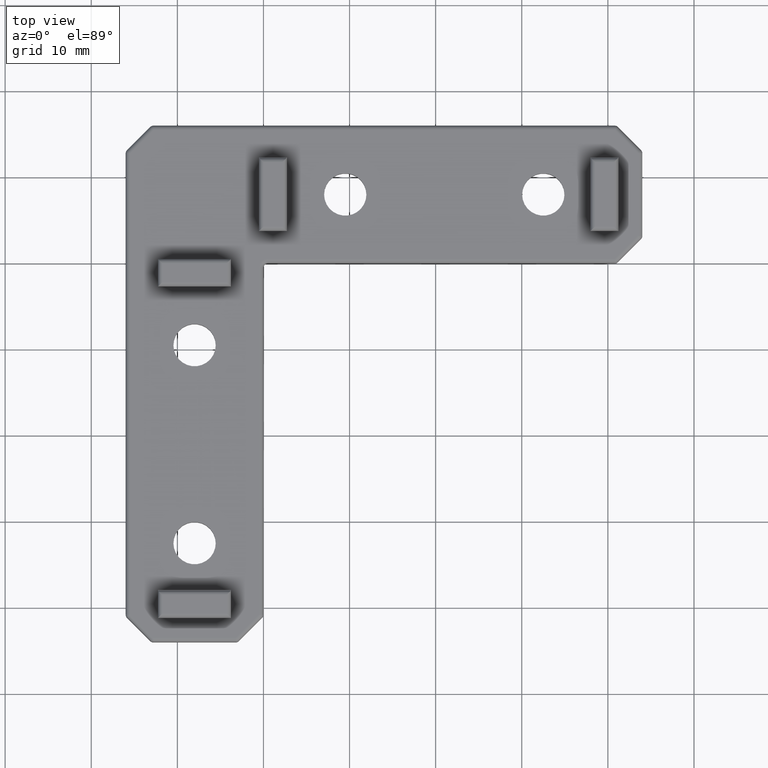
[diagram: clean part render]
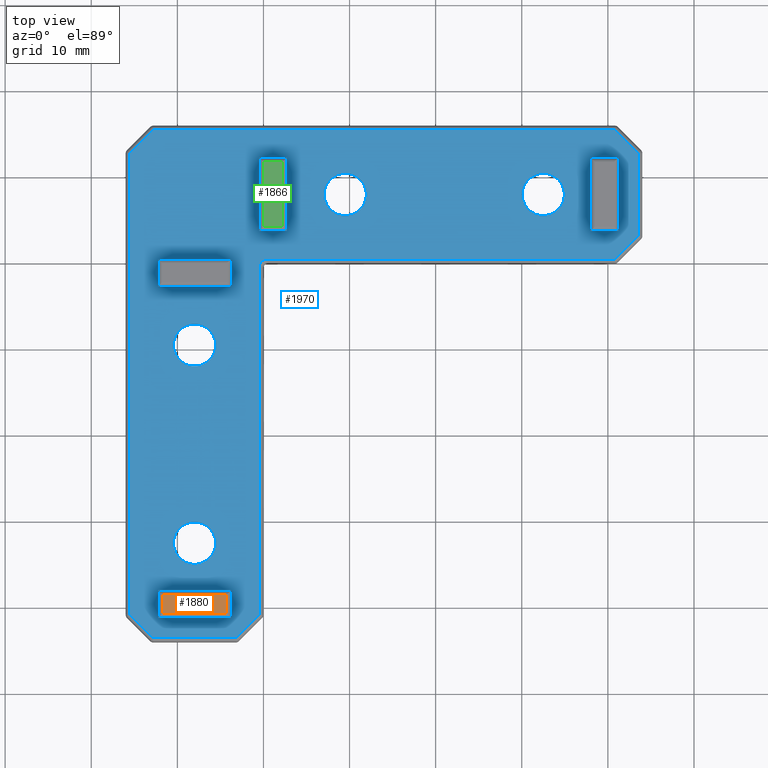
[diagram: same view with three faces highlighted in distinct colors, each labeled with its STEP entity id]
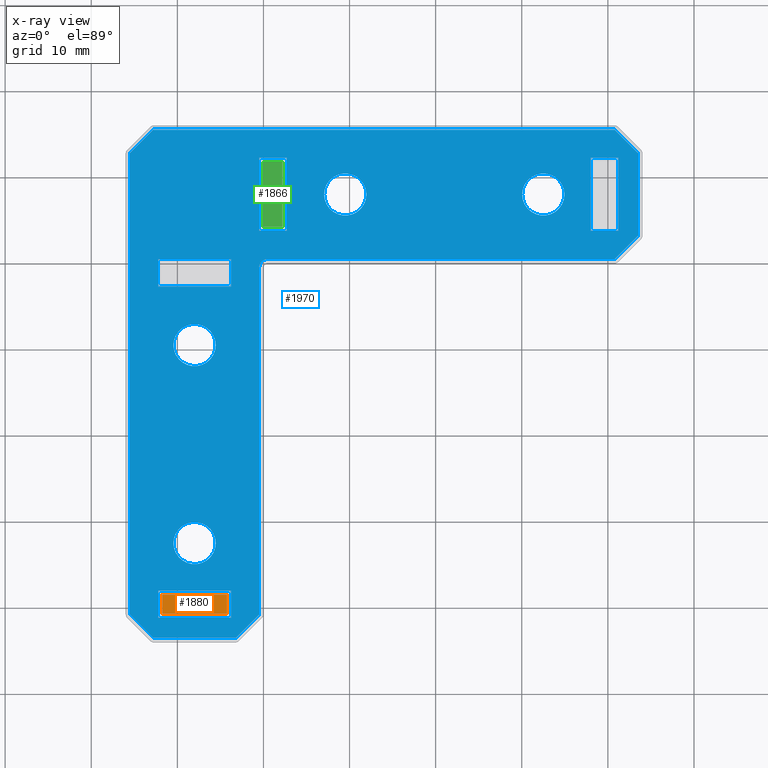
[diagram: x-ray of the same camera — body ghosted, the three highlighted faces saturated]
A machine part, top view with three faces highlighted in distinct colors.
The next image is the same camera in x-ray (body ghosted, the three faces saturated) — at least one of them is partly hidden behind the body in this view.
Their STEP definitions:

[orange] entity #1880 — the highlighted planar face has unit normal (0, 0, 1).
#144=PLANE('',#2026);
#213=FACE_OUTER_BOUND('',#341,.T.);
#341=EDGE_LOOP('',(#1368,#1369,#1370,#1371));
#517=LINE('',#2932,#695);
#519=LINE('',#2940,#697);
#521=LINE('',#2946,#699);
#524=LINE('',#2952,#702);
#695=VECTOR('',#2312,7.5);
#697=VECTOR('',#2320,2.2);
#699=VECTOR('',#2326,7.5);
#702=VECTOR('',#2333,2.2);
#867=VERTEX_POINT('',#2930);
#868=VERTEX_POINT('',#2931);
#871=VERTEX_POINT('',#2939);
#873=VERTEX_POINT('',#2945);
#1041=EDGE_CURVE('',#867,#868,#517,.T.);
#1045=EDGE_CURVE('',#868,#871,#519,.T.);
#1048=EDGE_CURVE('',#871,#873,#521,.T.);
#1052=EDGE_CURVE('',#873,#867,#524,.T.);
#1368=ORIENTED_EDGE('',*,*,#1041,.F.);
#1369=ORIENTED_EDGE('',*,*,#1052,.F.);
#1370=ORIENTED_EDGE('',*,*,#1048,.F.);
#1371=ORIENTED_EDGE('',*,*,#1045,.F.);
#1880=ADVANCED_FACE('',(#213),#144,.T.);
#2026=AXIS2_PLACEMENT_3D('',#2963,#2343,#2344);
#2312=DIRECTION('',(1.,0.,0.));
#2320=DIRECTION('',(0.,-1.,0.));
#2326=DIRECTION('',(-1.,0.,0.));
#2333=DIRECTION('',(0.,1.,0.));
#2343=DIRECTION('center_axis',(0.,0.,1.));
#2344=DIRECTION('ref_axis',(1.,0.,0.));
#2930=CARTESIAN_POINT('',(-11.75,-38.5,4.));
#2931=CARTESIAN_POINT('',(-4.25,-38.5,4.));
#2932=CARTESIAN_POINT('',(-5.875,-38.5,4.));
#2939=CARTESIAN_POINT('',(-4.25,-40.7,4.));
#2940=CARTESIAN_POINT('',(-4.25,-40.4,4.));
#2945=CARTESIAN_POINT('',(-11.75,-40.7,4.));
#2946=CARTESIAN_POINT('',(-10.125,-40.7,4.));
#2952=CARTESIAN_POINT('',(-11.75,-38.8,4.));
#2963=CARTESIAN_POINT('Origin',(-8.,-39.6,4.));

[blue] entity #1970 — the highlighted planar face has unit normal (0, 0, 1).
#49=FACE_BOUND('',#444,.T.);
#50=FACE_BOUND('',#445,.T.);
#51=FACE_BOUND('',#446,.T.);
#52=FACE_BOUND('',#447,.T.);
#53=FACE_BOUND('',#448,.T.);
#54=FACE_BOUND('',#449,.T.);
#55=FACE_BOUND('',#450,.T.);
#56=FACE_BOUND('',#451,.T.);
#58=CIRCLE('',#2057,2.4585);
#60=CIRCLE('',#2060,2.4585);
#62=CIRCLE('',#2063,2.4585);
#64=CIRCLE('',#2066,2.4585);
#84=CIRCLE('',#2094,0.999999999999998);
#175=PLANE('',#2192);
#303=FACE_OUTER_BOUND('',#443,.T.);
#443=EDGE_LOOP('',(#1728,#1729,#1730,#1731,#1732,#1733,#1734,#1735,#1736,
#1737,#1738,#1739));
#444=EDGE_LOOP('',(#1740,#1741,#1742,#1743));
#445=EDGE_LOOP('',(#1744,#1745,#1746,#1747));
#446=EDGE_LOOP('',(#1748,#1749,#1750,#1751));
#447=EDGE_LOOP('',(#1752,#1753,#1754,#1755));
#448=EDGE_LOOP('',(#1756));
#449=EDGE_LOOP('',(#1757));
#450=EDGE_LOOP('',(#1758));
#451=EDGE_LOOP('',(#1759));
#487=LINE('',#2852,#665);
#490=LINE('',#2857,#668);
#500=LINE('',#2887,#678);
#503=LINE('',#2892,#681);
#513=LINE('',#2922,#691);
#516=LINE('',#2927,#694);
#526=LINE('',#2957,#704);
#529=LINE('',#2962,#707);
#578=LINE('',#3066,#756);
#580=LINE('',#3069,#758);
#582=LINE('',#3073,#760);
#583=LINE('',#3075,#761);
#585=LINE('',#3079,#763);
#586=LINE('',#3081,#764);
#588=LINE('',#3085,#766);
#589=LINE('',#3087,#767);
#596=LINE('',#3164,#774);
#600=LINE('',#3198,#778);
#609=LINE('',#3239,#787);
#612=LINE('',#3272,#790);
#623=LINE('',#3309,#801);
#624=LINE('',#3318,#802);
#627=LINE('',#3322,#805);
#630=LINE('',#3327,#808);
#637=LINE('',#3337,#815);
#642=LINE('',#3345,#820);
#649=LINE('',#3355,#827);
#665=VECTOR('',#2232,8.5);
#668=VECTOR('',#2237,3.2);
#678=VECTOR('',#2267,8.5);
#681=VECTOR('',#2272,3.2);
#691=VECTOR('',#2302,8.5);
#694=VECTOR('',#2307,3.2);
#704=VECTOR('',#2337,3.2);
#707=VECTOR('',#2342,8.5);
#756=VECTOR('',#2435,3.2);
#758=VECTOR('',#2439,8.5);
#760=VECTOR('',#2443,8.5);
#761=VECTOR('',#2446,3.2);
#763=VECTOR('',#2450,8.5);
#764=VECTOR('',#2453,3.2);
#766=VECTOR('',#2457,3.2);
#767=VECTOR('',#2460,8.5);
#774=VECTOR('',#2551,40.2928932188135);
#778=VECTOR('',#2591,40.2928932188134);
#787=VECTOR('',#2640,3.82842712474619);
#790=VECTOR('',#2679,9.5857864376269);
#801=VECTOR('',#2724,3.82842712474619);
#802=VECTOR('',#2735,53.5857864376269);
#805=VECTOR('',#2740,3.82842712474619);
#808=VECTOR('',#2747,53.5857864376269);
#815=VECTOR('',#2760,3.82842712474619);
#820=VECTOR('',#2771,9.5857864376269);
#827=VECTOR('',#2784,3.8284271247462);
#842=VERTEX_POINT('',#2849);
#843=VERTEX_POINT('',#2851);
#844=VERTEX_POINT('',#2855);
#853=VERTEX_POINT('',#2884);
#854=VERTEX_POINT('',#2886);
#855=VERTEX_POINT('',#2890);
#864=VERTEX_POINT('',#2919);
#865=VERTEX_POINT('',#2921);
#866=VERTEX_POINT('',#2925);
#875=VERTEX_POINT('',#2954);
#876=VERTEX_POINT('',#2956);
#877=VERTEX_POINT('',#2960);
#910=VERTEX_POINT('',#3065);
#911=VERTEX_POINT('',#3071);
#912=VERTEX_POINT('',#3077);
#913=VERTEX_POINT('',#3083);
#915=VERTEX_POINT('',#3091);
#917=VERTEX_POINT('',#3096);
#919=VERTEX_POINT('',#3101);
#921=VERTEX_POINT('',#3106);
#933=VERTEX_POINT('',#3136);
#939=VERTEX_POINT('',#3153);
#941=VERTEX_POINT('',#3157);
#947=VERTEX_POINT('',#3180);
#953=VERTEX_POINT('',#3194);
#958=VERTEX_POINT('',#3212);
#964=VERTEX_POINT('',#3229);
#971=VERTEX_POINT('',#3254);
#977=VERTEX_POINT('',#3268);
#982=VERTEX_POINT('',#3289);
#985=VERTEX_POINT('',#3299);
#989=VERTEX_POINT('',#3314);
#1003=EDGE_CURVE('',#843,#842,#487,.T.);
#1006=EDGE_CURVE('',#842,#844,#490,.T.);
#1020=EDGE_CURVE('',#854,#853,#500,.T.);
#1023=EDGE_CURVE('',#853,#855,#503,.T.);
#1037=EDGE_CURVE('',#865,#864,#513,.T.);
#1040=EDGE_CURVE('',#864,#866,#516,.T.);
#1054=EDGE_CURVE('',#876,#875,#526,.T.);
#1057=EDGE_CURVE('',#875,#877,#529,.T.);
#1106=EDGE_CURVE('',#910,#865,#578,.T.);
#1108=EDGE_CURVE('',#866,#910,#580,.T.);
#1110=EDGE_CURVE('',#844,#911,#582,.T.);
#1111=EDGE_CURVE('',#911,#843,#583,.T.);
#1113=EDGE_CURVE('',#855,#912,#585,.T.);
#1114=EDGE_CURVE('',#912,#854,#586,.T.);
#1116=EDGE_CURVE('',#877,#913,#588,.T.);
#1117=EDGE_CURVE('',#913,#876,#589,.T.);
#1119=EDGE_CURVE('',#915,#915,#58,.T.);
#1121=EDGE_CURVE('',#917,#917,#60,.T.);
#1123=EDGE_CURVE('',#919,#919,#62,.T.);
#1125=EDGE_CURVE('',#921,#921,#64,.T.);
#1149=EDGE_CURVE('',#941,#939,#84,.T.);
#1152=EDGE_CURVE('',#933,#941,#596,.T.);
#1168=EDGE_CURVE('',#939,#953,#600,.T.);
#1189=EDGE_CURVE('',#953,#964,#609,.T.);
#1204=EDGE_CURVE('',#964,#977,#612,.T.);
#1224=EDGE_CURVE('',#977,#985,#623,.T.);
#1228=EDGE_CURVE('',#985,#989,#624,.T.);
#1231=EDGE_CURVE('',#989,#982,#627,.T.);
#1234=EDGE_CURVE('',#982,#971,#630,.T.);
#1241=EDGE_CURVE('',#971,#958,#637,.T.);
#1246=EDGE_CURVE('',#958,#947,#642,.T.);
#1253=EDGE_CURVE('',#947,#933,#649,.T.);
#1728=ORIENTED_EDGE('',*,*,#1149,.F.);
#1729=ORIENTED_EDGE('',*,*,#1152,.F.);
#1730=ORIENTED_EDGE('',*,*,#1253,.F.);
#1731=ORIENTED_EDGE('',*,*,#1246,.F.);
#1732=ORIENTED_EDGE('',*,*,#1241,.F.);
#1733=ORIENTED_EDGE('',*,*,#1234,.F.);
#1734=ORIENTED_EDGE('',*,*,#1231,.F.);
#1735=ORIENTED_EDGE('',*,*,#1228,.F.);
#1736=ORIENTED_EDGE('',*,*,#1224,.F.);
#1737=ORIENTED_EDGE('',*,*,#1204,.F.);
#1738=ORIENTED_EDGE('',*,*,#1189,.F.);
#1739=ORIENTED_EDGE('',*,*,#1168,.F.);
#1740=ORIENTED_EDGE('',*,*,#1106,.T.);
#1741=ORIENTED_EDGE('',*,*,#1037,.T.);
#1742=ORIENTED_EDGE('',*,*,#1040,.T.);
#1743=ORIENTED_EDGE('',*,*,#1108,.T.);
#1744=ORIENTED_EDGE('',*,*,#1110,.T.);
#1745=ORIENTED_EDGE('',*,*,#1111,.T.);
#1746=ORIENTED_EDGE('',*,*,#1003,.T.);
#1747=ORIENTED_EDGE('',*,*,#1006,.T.);
#1748=ORIENTED_EDGE('',*,*,#1113,.T.);
#1749=ORIENTED_EDGE('',*,*,#1114,.T.);
#1750=ORIENTED_EDGE('',*,*,#1020,.T.);
#1751=ORIENTED_EDGE('',*,*,#1023,.T.);
#1752=ORIENTED_EDGE('',*,*,#1116,.T.);
#1753=ORIENTED_EDGE('',*,*,#1117,.T.);
#1754=ORIENTED_EDGE('',*,*,#1054,.T.);
#1755=ORIENTED_EDGE('',*,*,#1057,.T.);
#1756=ORIENTED_EDGE('',*,*,#1119,.T.);
#1757=ORIENTED_EDGE('',*,*,#1121,.T.);
#1758=ORIENTED_EDGE('',*,*,#1123,.T.);
#1759=ORIENTED_EDGE('',*,*,#1125,.T.);
#1970=ADVANCED_FACE('',(#303,#49,#50,#51,#52,#53,#54,#55,#56),#175,.T.);
#2057=AXIS2_PLACEMENT_3D('',#3092,#2465,#2466);
#2060=AXIS2_PLACEMENT_3D('',#3097,#2471,#2472);
#2063=AXIS2_PLACEMENT_3D('',#3102,#2477,#2478);
#2066=AXIS2_PLACEMENT_3D('',#3107,#2483,#2484);
#2094=AXIS2_PLACEMENT_3D('',#3159,#2543,#2544);
#2192=AXIS2_PLACEMENT_3D('',#3367,#2801,#2802);
#2232=DIRECTION('',(0.,1.,0.));
#2237=DIRECTION('',(1.,0.,0.));
#2267=DIRECTION('',(0.,1.,0.));
#2272=DIRECTION('',(1.,0.,0.));
#2302=DIRECTION('',(-1.,-1.30614473485313E-16,0.));
#2307=DIRECTION('',(0.,1.,0.));
#2337=DIRECTION('',(0.,1.,0.));
#2342=DIRECTION('',(1.,0.,0.));
#2435=DIRECTION('',(0.,-1.,0.));
#2439=DIRECTION('',(1.,0.,0.));
#2443=DIRECTION('',(0.,-1.,0.));
#2446=DIRECTION('',(-1.,0.,0.));
#2450=DIRECTION('',(0.,-1.,0.));
#2453=DIRECTION('',(-1.,0.,0.));
#2457=DIRECTION('',(0.,-1.,0.));
#2460=DIRECTION('',(-1.,0.,0.));
#2465=DIRECTION('center_axis',(0.,0.,-1.));
#2466=DIRECTION('ref_axis',(1.,0.,0.));
#2471=DIRECTION('center_axis',(0.,0.,-1.));
#2472=DIRECTION('ref_axis',(1.,0.,0.));
#2477=DIRECTION('center_axis',(0.,0.,-1.));
#2478=DIRECTION('ref_axis',(1.,0.,0.));
#2483=DIRECTION('center_axis',(0.,0.,-1.));
#2484=DIRECTION('ref_axis',(1.,0.,0.));
#2543=DIRECTION('center_axis',(0.,0.,1.));
#2544=DIRECTION('ref_axis',(-0.707106781186548,0.707106781186547,0.));
#2551=DIRECTION('',(-1.,0.,0.));
#2591=DIRECTION('',(0.,-1.,0.));
#2640=DIRECTION('',(-0.707106781186548,-0.707106781186547,0.));
#2679=DIRECTION('',(-1.,0.,0.));
#2724=DIRECTION('',(-0.707106781186547,0.707106781186547,0.));
#2735=DIRECTION('',(0.,1.,0.));
#2740=DIRECTION('',(0.707106781186547,0.707106781186548,0.));
#2747=DIRECTION('',(1.,0.,0.));
#2760=DIRECTION('',(0.707106781186548,-0.707106781186547,0.));
#2771=DIRECTION('',(0.,-1.,0.));
#2784=DIRECTION('',(-0.707106781186547,-0.707106781186548,0.));
#2801=DIRECTION('center_axis',(0.,0.,1.));
#2802=DIRECTION('ref_axis',(1.,0.,0.));
#2849=CARTESIAN_POINT('',(38.,12.25,3.));
#2851=CARTESIAN_POINT('',(38.,3.75,3.));
#2852=CARTESIAN_POINT('',(38.,3.15833333333334,3.));
#2855=CARTESIAN_POINT('',(41.2,12.25,3.));
#2857=CARTESIAN_POINT('',(23.5666666666667,12.25,3.));
#2884=CARTESIAN_POINT('',(-0.5,12.25,3.));
#2886=CARTESIAN_POINT('',(-0.5,3.75,3.));
#2887=CARTESIAN_POINT('',(-0.5,3.15833333333334,3.));
#2890=CARTESIAN_POINT('',(2.7,12.25,3.));
#2892=CARTESIAN_POINT('',(4.31666666666667,12.25,3.));
#2919=CARTESIAN_POINT('',(-12.25,-2.7,3.));
#2921=CARTESIAN_POINT('',(-3.75,-2.7,3.));
#2922=CARTESIAN_POINT('',(-3.15833333333333,-2.7,3.));
#2925=CARTESIAN_POINT('',(-12.25,0.5,3.));
#2927=CARTESIAN_POINT('',(-12.25,-2.71666666666667,3.));
#2954=CARTESIAN_POINT('',(-12.25,-38.,3.));
#2956=CARTESIAN_POINT('',(-12.25,-41.2,3.));
#2957=CARTESIAN_POINT('',(-12.25,-21.9666666666667,3.));
#2960=CARTESIAN_POINT('',(-3.75,-38.,3.));
#2962=CARTESIAN_POINT('',(1.09166666666667,-38.,3.));
#3065=CARTESIAN_POINT('',(-3.75,0.5,3.));
#3066=CARTESIAN_POINT('',(-3.75,-4.31666666666667,3.));
#3069=CARTESIAN_POINT('',(1.09166666666667,0.5,3.));
#3071=CARTESIAN_POINT('',(41.2,3.75,3.));
#3073=CARTESIAN_POINT('',(41.2,-1.09166666666666,3.));
#3075=CARTESIAN_POINT('',(21.9666666666667,3.75,3.));
#3077=CARTESIAN_POINT('',(2.7,3.75,3.));
#3079=CARTESIAN_POINT('',(2.7,-1.09166666666666,3.));
#3081=CARTESIAN_POINT('',(2.71666666666667,3.75,3.));
#3083=CARTESIAN_POINT('',(-3.75,-41.2,3.));
#3085=CARTESIAN_POINT('',(-3.75,-23.5666666666667,3.));
#3087=CARTESIAN_POINT('',(-3.15833333333333,-41.2,3.));
#3091=CARTESIAN_POINT('',(-5.5415,-9.5,3.));
#3092=CARTESIAN_POINT('Origin',(-8.,-9.5,3.00000000000001));
#3096=CARTESIAN_POINT('',(34.9585,8.,3.));
#3097=CARTESIAN_POINT('Origin',(32.5,8.,3.00000000000001));
#3101=CARTESIAN_POINT('',(11.9585,8.,3.));
#3102=CARTESIAN_POINT('Origin',(9.5,8.,3.00000000000001));
#3106=CARTESIAN_POINT('',(-5.5415,-32.5,3.));
#3107=CARTESIAN_POINT('Origin',(-8.,-32.5,3.00000000000001));
#3136=CARTESIAN_POINT('',(40.7928932188135,0.5,3.));
#3153=CARTESIAN_POINT('',(-0.5,-0.499999999999998,3.));
#3157=CARTESIAN_POINT('',(0.5,0.5,3.));
#3159=CARTESIAN_POINT('Origin',(0.5,-0.499999999999998,3.));
#3164=CARTESIAN_POINT('',(2.96666666666667,0.5,3.));
#3180=CARTESIAN_POINT('',(43.5,3.20710678118655,3.));
#3194=CARTESIAN_POINT('',(-0.499999999999999,-40.7928932188134,3.));
#3198=CARTESIAN_POINT('',(-0.5,-24.9666666666667,3.));
#3212=CARTESIAN_POINT('',(43.5,12.7928932188135,3.));
#3229=CARTESIAN_POINT('',(-3.20710678118655,-43.5,3.));
#3239=CARTESIAN_POINT('',(9.14644660940673,-31.1464466094067,3.));
#3254=CARTESIAN_POINT('',(40.7928932188135,15.5,3.));
#3268=CARTESIAN_POINT('',(-12.7928932188135,-43.5,3.));
#3272=CARTESIAN_POINT('',(-5.03333333333333,-43.5,3.));
#3289=CARTESIAN_POINT('',(-12.7928932188135,15.5,3.));
#3299=CARTESIAN_POINT('',(-15.5,-40.7928932188134,3.));
#3309=CARTESIAN_POINT('',(-18.1797799427401,-38.1131132760734,3.));
#3314=CARTESIAN_POINT('',(-15.5,12.7928932188135,3.));
#3318=CARTESIAN_POINT('',(-15.5,5.03333333333334,3.));
#3322=CARTESIAN_POINT('',(-14.1464466094067,14.1464466094067,3.));
#3327=CARTESIAN_POINT('',(24.9666666666667,15.5,3.));
#3337=CARTESIAN_POINT('',(38.1131132760734,18.1797799427401,3.));
#3345=CARTESIAN_POINT('',(43.5,-2.96666666666666,3.));
#3355=CARTESIAN_POINT('',(31.1464466094067,-9.14644660940673,3.));
#3367=CARTESIAN_POINT('Origin',(5.93333333333333,-5.93333333333333,3.));

[green] entity #1866 — the highlighted planar face has unit normal (0, 0, 1).
#138=PLANE('',#2004);
#199=FACE_OUTER_BOUND('',#327,.T.);
#327=EDGE_LOOP('',(#1312,#1313,#1314,#1315));
#491=LINE('',#2862,#669);
#493=LINE('',#2870,#671);
#495=LINE('',#2876,#673);
#498=LINE('',#2882,#676);
#669=VECTOR('',#2242,2.2);
#671=VECTOR('',#2250,7.5);
#673=VECTOR('',#2256,2.2);
#676=VECTOR('',#2263,7.5);
#845=VERTEX_POINT('',#2860);
#846=VERTEX_POINT('',#2861);
#849=VERTEX_POINT('',#2869);
#851=VERTEX_POINT('',#2875);
#1007=EDGE_CURVE('',#845,#846,#491,.T.);
#1011=EDGE_CURVE('',#846,#849,#493,.T.);
#1014=EDGE_CURVE('',#849,#851,#495,.T.);
#1018=EDGE_CURVE('',#851,#845,#498,.T.);
#1312=ORIENTED_EDGE('',*,*,#1007,.F.);
#1313=ORIENTED_EDGE('',*,*,#1018,.F.);
#1314=ORIENTED_EDGE('',*,*,#1014,.F.);
#1315=ORIENTED_EDGE('',*,*,#1011,.F.);
#1866=ADVANCED_FACE('',(#199),#138,.T.);
#2004=AXIS2_PLACEMENT_3D('',#2893,#2273,#2274);
#2242=DIRECTION('',(1.,0.,0.));
#2250=DIRECTION('',(0.,-1.,0.));
#2256=DIRECTION('',(-1.,0.,0.));
#2263=DIRECTION('',(0.,1.,0.));
#2273=DIRECTION('center_axis',(0.,0.,1.));
#2274=DIRECTION('ref_axis',(1.,0.,0.));
#2860=CARTESIAN_POINT('',(0.,11.75,4.));
#2861=CARTESIAN_POINT('',(2.2,11.75,4.));
#2862=CARTESIAN_POINT('',(1.9,11.75,4.));
#2869=CARTESIAN_POINT('',(2.2,4.25,4.));
#2870=CARTESIAN_POINT('',(2.2,5.875,4.));
#2875=CARTESIAN_POINT('',(0.,4.25,4.));
#2876=CARTESIAN_POINT('',(0.3,4.25,4.));
#2882=CARTESIAN_POINT('',(0.,10.125,4.));
#2893=CARTESIAN_POINT('Origin',(1.1,8.,4.));